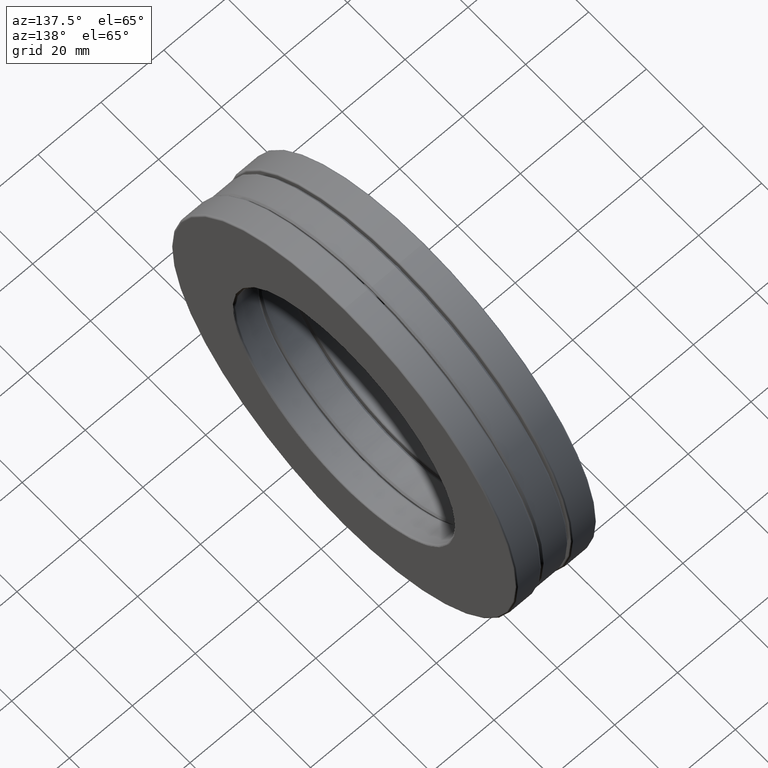
[diagram: clean part render]
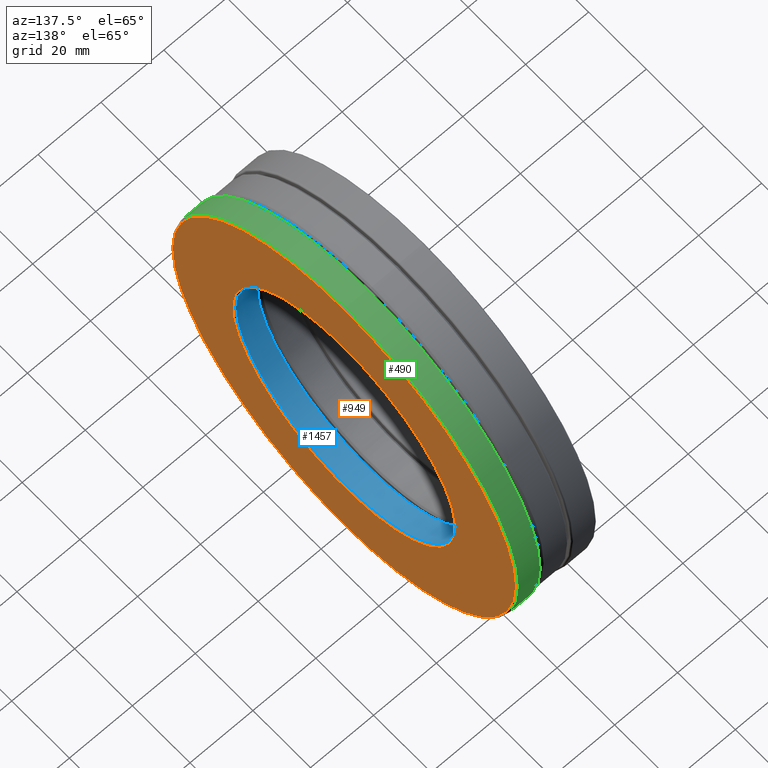
[diagram: same view with three faces highlighted in distinct colors, each labeled with its STEP entity id]
A machine part, auxiliary view with three faces highlighted in distinct colors.
Their STEP definitions:

[orange] entity #949 — the highlighted planar face has unit normal (1, 0, 0).
#54 = DIRECTION ( 'NONE',  ( 0.0000000000000000000, 0.0000000000000000000, 1.000000000000000000 ) ) ;
#70 = CARTESIAN_POINT ( 'NONE',  ( 0.5000000000000000000, 0.0000000000000000000, 0.0000000000000000000 ) ) ;
#93 = EDGE_CURVE ( 'NONE', #698, #698, #1033, .T. ) ;
#138 = CARTESIAN_POINT ( 'NONE',  ( 0.5000000000000000000, 0.0000000000000000000, 0.0000000000000000000 ) ) ;
#185 = DIRECTION ( 'NONE',  ( 0.0000000000000000000, 0.0000000000000000000, 1.000000000000000000 ) ) ;
#269 = DIRECTION ( 'NONE',  ( 1.000000000000000000, 0.0000000000000000000, 0.0000000000000000000 ) ) ;
#281 = AXIS2_PLACEMENT_3D ( 'NONE', #611, #1306, #54 ) ;
#377 = EDGE_LOOP ( 'NONE', ( #1019 ) ) ;
#487 = EDGE_LOOP ( 'NONE', ( #1186 ) ) ;
#491 = CARTESIAN_POINT ( 'NONE',  ( 0.5000000000000000000, 0.0000000000000000000, 2.339375000000000400 ) ) ;
#537 = EDGE_CURVE ( 'NONE', #1029, #1029, #939, .T. ) ;
#611 = CARTESIAN_POINT ( 'NONE',  ( 0.5000000000000000000, 0.0000000000000000000, 0.0000000000000000000 ) ) ;
#698 = VERTEX_POINT ( 'NONE', #491 ) ;
#773 = AXIS2_PLACEMENT_3D ( 'NONE', #138, #269, #823 ) ;
#823 = DIRECTION ( 'NONE',  ( 0.0000000000000000000, 0.0000000000000000000, -1.000000000000000000 ) ) ;
#859 = DIRECTION ( 'NONE',  ( -1.000000000000000000, -0.0000000000000000000, -0.0000000000000000000 ) ) ;
#939 = CIRCLE ( 'NONE', #1365, 1.520000000000000200 ) ;
#949 = ADVANCED_FACE ( 'NONE', ( #1157, #968 ), #1059, .T. ) ;
#968 = FACE_OUTER_BOUND ( 'NONE', #487, .T. ) ;
#1019 = ORIENTED_EDGE ( 'NONE', *, *, #537, .T. ) ;
#1029 = VERTEX_POINT ( 'NONE', #1069 ) ;
#1033 = CIRCLE ( 'NONE', #281, 2.339375000000000400 ) ;
#1059 = PLANE ( 'NONE',  #773 ) ;
#1069 = CARTESIAN_POINT ( 'NONE',  ( 0.5000000000000000000, 0.0000000000000000000, 1.520000000000000200 ) ) ;
#1157 = FACE_BOUND ( 'NONE', #377, .T. ) ;
#1186 = ORIENTED_EDGE ( 'NONE', *, *, #93, .F. ) ;
#1306 = DIRECTION ( 'NONE',  ( -1.000000000000000000, -0.0000000000000000000, -0.0000000000000000000 ) ) ;
#1365 = AXIS2_PLACEMENT_3D ( 'NONE', #70, #859, #185 ) ;

[blue] entity #1457 — the highlighted cylindrical surface (bore or boss wall) has radius 38.1 mm, axis along (-1, -0, -0).
#13 = FACE_OUTER_BOUND ( 'NONE', #1255, .T. ) ;
#47 = CARTESIAN_POINT ( 'NONE',  ( 0.0000000000000000000, 0.0000000000000000000, 0.0000000000000000000 ) ) ;
#119 = ORIENTED_EDGE ( 'NONE', *, *, #688, .F. ) ;
#378 = DIRECTION ( 'NONE',  ( -1.000000000000000000, -0.0000000000000000000, -0.0000000000000000000 ) ) ;
#383 = CARTESIAN_POINT ( 'NONE',  ( 0.4800000000000000900, 0.0000000000000000000, 1.500000000000000200 ) ) ;
#472 = CIRCLE ( 'NONE', #924, 1.500000000000000200 ) ;
#485 = CARTESIAN_POINT ( 'NONE',  ( 0.2075000000000000700, 0.0000000000000000000, 1.500000000000000200 ) ) ;
#551 = DIRECTION ( 'NONE',  ( 0.0000000000000000000, 0.0000000000000000000, 1.000000000000000000 ) ) ;
#590 = DIRECTION ( 'NONE',  ( 0.0000000000000000000, 0.0000000000000000000, 1.000000000000000000 ) ) ;
#651 = FACE_OUTER_BOUND ( 'NONE', #1018, .T. ) ;
#682 = DIRECTION ( 'NONE',  ( -1.000000000000000000, -0.0000000000000000000, -0.0000000000000000000 ) ) ;
#688 = EDGE_CURVE ( 'NONE', #786, #786, #1010, .T. ) ;
#775 = EDGE_CURVE ( 'NONE', #993, #993, #472, .T. ) ;
#786 = VERTEX_POINT ( 'NONE', #383 ) ;
#876 = CYLINDRICAL_SURFACE ( 'NONE', #1243, 1.500000000000000200 ) ;
#924 = AXIS2_PLACEMENT_3D ( 'NONE', #1271, #682, #1369 ) ;
#993 = VERTEX_POINT ( 'NONE', #485 ) ;
#1010 = CIRCLE ( 'NONE', #1390, 1.500000000000000200 ) ;
#1018 = EDGE_LOOP ( 'NONE', ( #1128 ) ) ;
#1124 = CARTESIAN_POINT ( 'NONE',  ( 0.4800000000000000900, 0.0000000000000000000, 0.0000000000000000000 ) ) ;
#1128 = ORIENTED_EDGE ( 'NONE', *, *, #775, .T. ) ;
#1241 = DIRECTION ( 'NONE',  ( -1.000000000000000000, -0.0000000000000000000, -0.0000000000000000000 ) ) ;
#1243 = AXIS2_PLACEMENT_3D ( 'NONE', #47, #378, #590 ) ;
#1255 = EDGE_LOOP ( 'NONE', ( #119 ) ) ;
#1271 = CARTESIAN_POINT ( 'NONE',  ( 0.2075000000000000700, 0.0000000000000000000, 0.0000000000000000000 ) ) ;
#1369 = DIRECTION ( 'NONE',  ( 0.0000000000000000000, 0.0000000000000000000, 1.000000000000000000 ) ) ;
#1390 = AXIS2_PLACEMENT_3D ( 'NONE', #1124, #1241, #551 ) ;
#1457 = ADVANCED_FACE ( 'NONE', ( #651, #13 ), #876, .F. ) ;

[green] entity #490 — the highlighted cylindrical surface (bore or boss wall) has radius 59.9281 mm, axis along (-1, -0, -0).
#108 = CIRCLE ( 'NONE', #1176, 2.359375000000000000 ) ;
#131 = EDGE_LOOP ( 'NONE', ( #1404 ) ) ;
#211 = DIRECTION ( 'NONE',  ( -1.000000000000000000, -0.0000000000000000000, -0.0000000000000000000 ) ) ;
#215 = DIRECTION ( 'NONE',  ( 0.0000000000000000000, 0.0000000000000000000, 1.000000000000000000 ) ) ;
#260 = AXIS2_PLACEMENT_3D ( 'NONE', #1068, #1471, #722 ) ;
#267 = CARTESIAN_POINT ( 'NONE',  ( 0.2075000000000000200, 0.0000000000000000000, 2.359375000000000000 ) ) ;
#343 = ORIENTED_EDGE ( 'NONE', *, *, #584, .F. ) ;
#373 = EDGE_LOOP ( 'NONE', ( #343 ) ) ;
#442 = DIRECTION ( 'NONE',  ( 0.0000000000000000000, 0.0000000000000000000, 1.000000000000000000 ) ) ;
#490 = ADVANCED_FACE ( 'NONE', ( #1236, #1440 ), #532, .T. ) ;
#532 = CYLINDRICAL_SURFACE ( 'NONE', #260, 2.359375000000000000 ) ;
#584 = EDGE_CURVE ( 'NONE', #1413, #1413, #740, .T. ) ;
#600 = CARTESIAN_POINT ( 'NONE',  ( 0.4800000000000000900, 0.0000000000000000000, 2.359375000000000000 ) ) ;
#671 = EDGE_CURVE ( 'NONE', #1062, #1062, #108, .T. ) ;
#722 = DIRECTION ( 'NONE',  ( 0.0000000000000000000, 0.0000000000000000000, 1.000000000000000000 ) ) ;
#740 = CIRCLE ( 'NONE', #1118, 2.359375000000000000 ) ;
#765 = DIRECTION ( 'NONE',  ( -1.000000000000000000, -0.0000000000000000000, -0.0000000000000000000 ) ) ;
#894 = CARTESIAN_POINT ( 'NONE',  ( 0.2075000000000000200, 0.0000000000000000000, 0.0000000000000000000 ) ) ;
#1062 = VERTEX_POINT ( 'NONE', #600 ) ;
#1068 = CARTESIAN_POINT ( 'NONE',  ( 0.0000000000000000000, 0.0000000000000000000, 0.0000000000000000000 ) ) ;
#1118 = AXIS2_PLACEMENT_3D ( 'NONE', #894, #211, #442 ) ;
#1176 = AXIS2_PLACEMENT_3D ( 'NONE', #1451, #765, #215 ) ;
#1236 = FACE_OUTER_BOUND ( 'NONE', #373, .T. ) ;
#1404 = ORIENTED_EDGE ( 'NONE', *, *, #671, .T. ) ;
#1413 = VERTEX_POINT ( 'NONE', #267 ) ;
#1440 = FACE_OUTER_BOUND ( 'NONE', #131, .T. ) ;
#1451 = CARTESIAN_POINT ( 'NONE',  ( 0.4800000000000000900, 0.0000000000000000000, 0.0000000000000000000 ) ) ;
#1471 = DIRECTION ( 'NONE',  ( -1.000000000000000000, -0.0000000000000000000, -0.0000000000000000000 ) ) ;